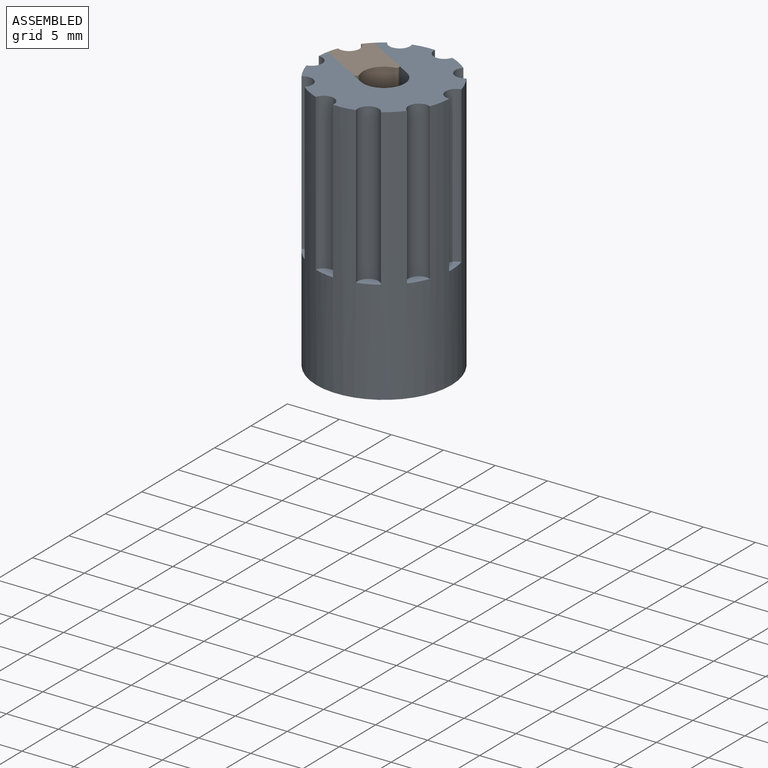
[diagram: assembled view]
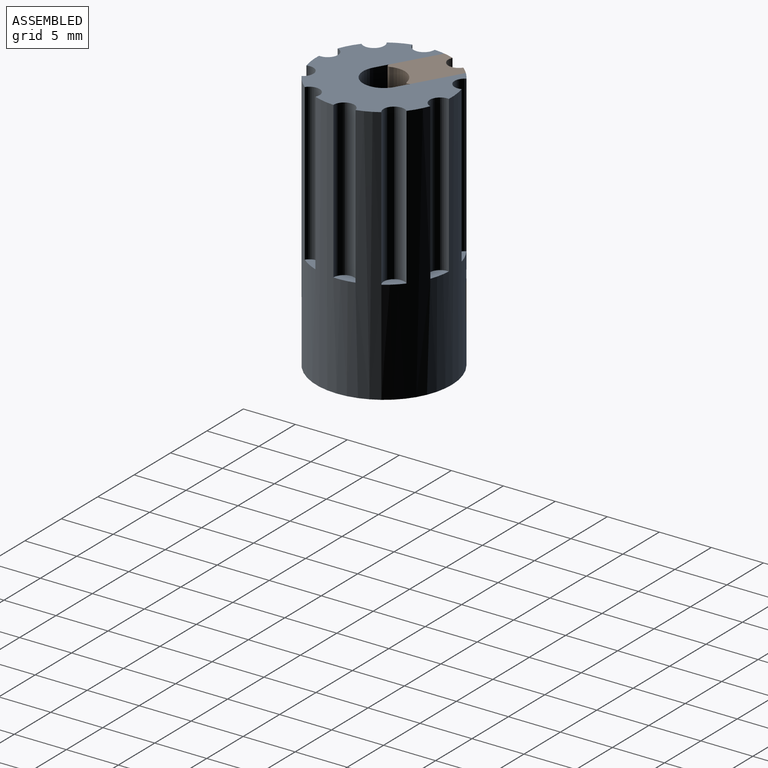
[diagram: assembled view, second angle]
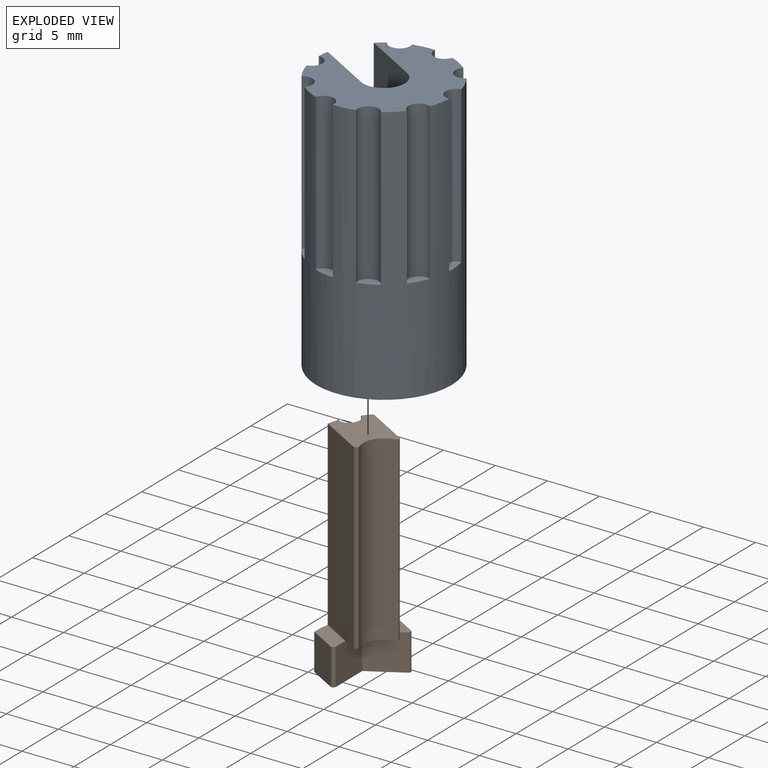
[diagram: exploded view]
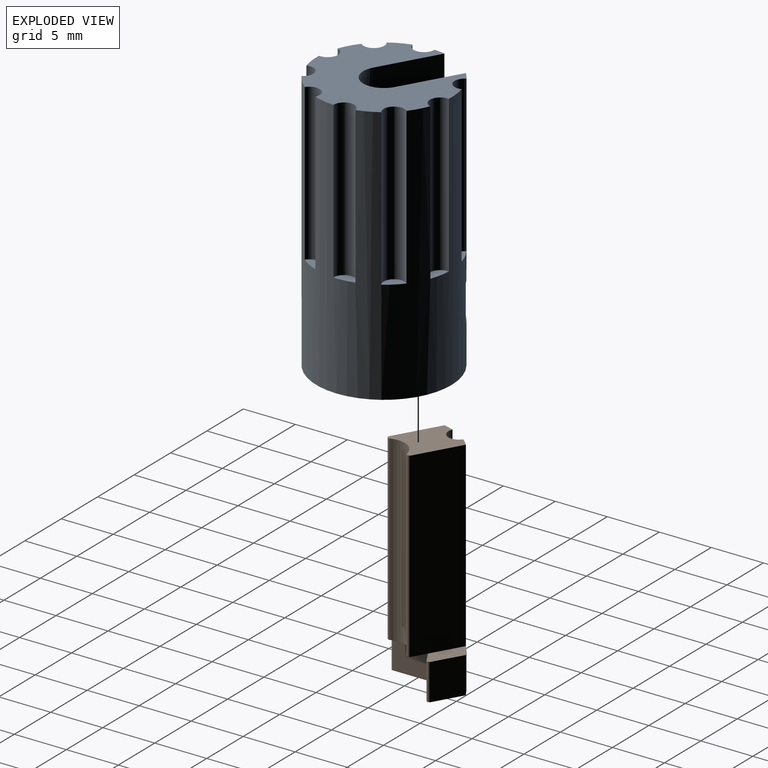
[diagram: exploded view, second angle]
ASSEMBLY  parts=2 mates=2
PART A: 31 faces, bbox 13x13x25 mm
  f0: plane 6.49x3.75mm, normal (0.5,0.87,0), area 26.2mm2, adj f1,f2,f3,f7
  f1: plane 10x9.81mm, normal (0,0,-1), area 32.5mm2, adj f0,f3,f4,f5,f6,f7,f8,f9
  f2: plane 10x9.81mm, normal (0,0,1), area 64.4mm2, adj f0,f3,f4,f5,f7
  f3: plane 3.5x3.5mm, normal (-0.5,0.87,0), area 14.1mm2, adj f0,f1,f2,f4
  f4: plane 4.04x3.5mm, normal (-1,0,0), area 14.1mm2, adj f1,f2,f3,f5
  f5: plane 6.49x3.75mm, normal (-0.5,-0.87,0), area 26.2mm2, adj f1,f2,f4,f7
  f6: cylinder r=2mm len=17.5mm, axis (0,0,1), area 110mm2, adj f1,f9,f10,f12
  f7: cylinder r=6.5mm len=25mm, axis (0,0,-1), area 633.8mm2, adj f0,f1,f2,f5,f8,f10,f11,f12
  f8: cylinder r=6.5mm len=17.5mm, axis (0,0,-1), area 19.9mm2, adj f1,f7,f9,f12,f21,f22
  f9: plane 17.5x5.36mm, normal (0.5,0.87,0), area 108.2mm2, adj f1,f6,f8,f12
  f10: plane 17.5x5.36mm, normal (-0.5,-0.87,0), area 108.2mm2, adj f1,f6,f7,f12
  f11: plane 13x13mm, normal (0,0,-1), area 132.7mm2, adj f7
  f12: plane 13x12.98mm, normal (0,0,1), area 87.2mm2, adj f6,f7,f8,f9,f10,f13,f15,f17
  f13: cylinder r=1mm len=15mm, axis (0,0,1), area 44.8mm2, adj f7,f12,f14
  f14: plane 1.83x1.43mm, normal (0,0,1), area 1.5mm2, adj f7,f13
  f15: cylinder r=1mm len=15mm, axis (0,0,1), area 44.8mm2, adj f7,f12,f16
  f16: plane 1.88x1.34mm, normal (0,0,1), area 1.5mm2, adj f7,f15
  f17: cylinder r=1mm len=15mm, axis (0,0,1), area 44.8mm2, adj f7,f12,f18
  f18: plane 1.96x1.13mm, normal (0,0,1), area 1.5mm2, adj f7,f17
  f19: cylinder r=1mm len=15mm, axis (0,0,1), area 44.8mm2, adj f7,f12,f20
  f20: plane 1.69x1.61mm, normal (0,0,1), area 1.5mm2, adj f7,f19
  f21: cylinder r=1mm len=15mm, axis (0,0,1), area 44.8mm2, adj f7,f8,f12,f22
  f22: plane 1.98x1.04mm, normal (0,0,1), area 1.5mm2, adj f7,f8,f21
  f23: cylinder r=1mm len=15mm, axis (0,0,1), area 44.8mm2, adj f7,f12,f24
  f24: plane 1.88x1.34mm, normal (0,0,1), area 1.5mm2, adj f7,f23
  f25: cylinder r=1mm len=15mm, axis (0,0,1), area 44.8mm2, adj f7,f12,f26
  f26: plane 1.96x1.13mm, normal (0,0,1), area 1.5mm2, adj f7,f25
  f27: cylinder r=1mm len=15mm, axis (0,0,1), area 44.8mm2, adj f7,f12,f28
  f28: plane 1.69x1.61mm, normal (0,0,1), area 1.5mm2, adj f7,f27
  f29: cylinder r=1mm len=15mm, axis (0,0,1), area 44.8mm2, adj f7,f12,f30
  f30: plane 1.98x1.04mm, normal (0,0,1), area 1.5mm2, adj f7,f29
PART B: 19 faces, bbox 7.6x6.4x21 mm
  f0: cylinder r=6.5mm len=21mm, axis (0,0,-1), area 27.5mm2, adj f1,f6,f8,f12,f13,f18
  f1: plane 3.2x3mm, normal (0,0,1), area 5.1mm2, adj f0,f2,f6,f12,f17
  f2: plane 3.61x3.5mm, normal (0,-1,0), area 12.6mm2, adj f1,f3,f8,f9,f17
  f3: plane 3.5x3.13mm, normal (-0.87,-0.5,0), area 12.6mm2, adj f2,f7,f8,f9,f16
  f4: plane 3.5x2.62mm, normal (0.87,-0.5,0), area 10.6mm2, adj f5,f7,f8,f16
  f5: cylinder r=6.5mm len=21mm, axis (0,0,-1), area 27.5mm2, adj f4,f7,f8,f11,f13,f18
  f6: plane 3.5x2.62mm, normal (-0.87,0.5,0), area 10.6mm2, adj f0,f1,f8,f17
  f7: plane 4.11x2.59mm, normal (0,0,1), area 5.1mm2, adj f3,f4,f5,f11,f16
  f8: plane 7.61x6.25mm, normal (0,0,-1), area 20.4mm2, adj f0,f2,f3,f4,f5,f6,f16,f17
  f9: plane 4.23x3.4mm, normal (0,0,-1), area 7.3mm2, adj f2,f3,f10,f11,f12,f14,f15
  f10: cylinder r=2mm len=17.5mm, axis (0,0,-1), area 62.4mm2, adj f9,f13,f14,f15
  f11: plane 17.5x4.13mm, normal (0.87,-0.5,0), area 83.5mm2, adj f5,f7,f9,f13,f15
  f12: plane 17.5x4.13mm, normal (-0.87,0.5,0), area 83.5mm2, adj f0,f1,f9,f13,f14
  f13: plane 6.26x5.88mm, normal (0,0,1), area 17.5mm2, adj f0,f5,f10,f11,f12,f14,f15,f18
  f14: cylinder r=0.25mm len=17.5mm, axis (0,0,-1), area 10.8mm2, adj f9,f10,f12,f13
  f15: cylinder r=0.25mm len=17.5mm, axis (0,0,-1), area 10.8mm2, adj f9,f10,f11,f13
  f16: cylinder r=0.25mm len=3.5mm, axis (0,0,-1), area 1.8mm2, adj f3,f4,f7,f8
  f17: cylinder r=0.25mm len=3.5mm, axis (0,0,1), area 1.8mm2, adj f1,f2,f6,f8
  f18: cylinder r=1mm len=21mm, axis (0,0,1), area 62.7mm2, adj f0,f5,f8,f13
PLACE A t=(2.47,-0.23,-1.94)mm
PLACE B rot(axis=(0,0,1),90deg) t=(2.47,-0.23,-0.44)mm
MATE parallel B.f8 <-> A.f2  axis (0,0,-1) through (-4.03,-0.53,-0.44)mm
MATE parallel B.f11 <-> A.f10  axis (0.5,0.87,0) through (0.18,3.4,11.81)mm
